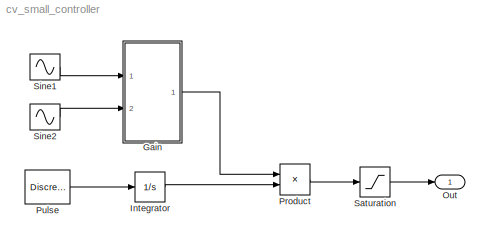
MODEL cv_small_controller
KIND model
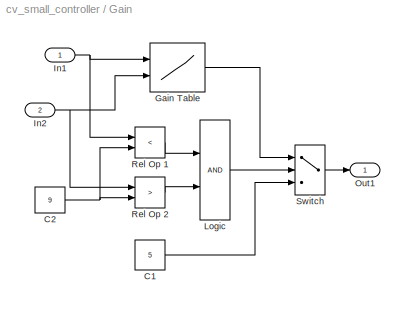
BLOCK [SubSystem] Gain
  MinAlgLoopOccurrences = off
  Ports = [2, 1]
  PropExecContextAcrossSSBoundary = on
  RTWSystemCode = Auto
  TreatAsAtomicUnit = off
BLOCK [Constant] Gain/C1
  Value = 5
BLOCK [Constant] Gain/C2
  Value = 9
BLOCK [Lookup2D] Gain/Gain Table
  ColumnIndex = [1:10]
  DialogController = Simulink.DDGSource
  InputSameDT = off
  OutputValues = sqrt([1:10]'*[1:10])
  RowIndex = [1:10]
  SaturateOnIntegerOverflow = off
BLOCK [Inport] Gain/In1
  IconDisplay = Port number
  LatchInput = off
  Port = 1
BLOCK [Inport] Gain/In2
  IconDisplay = Port number
  LatchInput = off
  Port = 2
BLOCK [Logic] Gain/Logic
  AllPortsSameDT = off
  OutDataTypeMode = Boolean
  Ports = [2, 1]
BLOCK [Outport] Gain/Out1
  IconDisplay = Port number
BLOCK [RelationalOperator] Gain/Rel Op 1
  InputSameDT = off
  LogicOutDataTypeMode = Boolean
  Operator = <
BLOCK [RelationalOperator] Gain/Rel Op 2
  InputSameDT = off
  LogicOutDataTypeMode = Boolean
  Operator = >
BLOCK [Switch] Gain/Switch
  InputSameDT = off
  SaturateOnIntegerOverflow = off
  Threshold = 1
BLOCK [Integrator] Integrator
  Ports = [1, 1]
BLOCK [Outport] Out
  IconDisplay = Port number
BLOCK [Product] Product
  InputSameDT = off
  OutDataTypeMode = Inherit via internal rule
  Ports = [2, 1]
  SaturateOnIntegerOverflow = off
BLOCK [DiscretePulseGenerator] Pulse
  Ports = [0, 1]
  PulseType = Time based
  PulseWidth = 50
BLOCK [Saturate] Saturation
BLOCK [Sin] Sine1
  Amplitude = 3
  Bias = 5.5
  Ports = [0, 1]
  SampleTime = 0
  SineType = Time based
BLOCK [Sin] Sine2
  Amplitude = 3
  Bias = 5.5
  Phase = pi/2
  Ports = [0, 1]
  SampleTime = 0
  SineType = Time based
LINE Gain/C1:1 -> Gain/Switch:3
NET Gain/C2:1 -> Gain/Rel Op 1:2, Gain/Rel Op 2:2
LINE Gain/Gain Table:1 -> Gain/Switch:1
NET Gain/In1:1 -> Gain/Gain Table:1, Gain/Rel Op 1:1
NET Gain/In2:1 -> Gain/Gain Table:2, Gain/Rel Op 2:1
LINE Gain/Logic:1 -> Gain/Switch:2
LINE Gain/Rel Op 1:1 -> Gain/Logic:1
LINE Gain/Rel Op 2:1 -> Gain/Logic:2
LINE Gain/Switch:1 -> Gain/Out1:1
LINE Gain:1 -> Product:1
LINE Integrator:1 -> Product:2
LINE Product:1 -> Saturation:1
LINE Pulse:1 -> Integrator:1
LINE Saturation:1 -> Out:1
LINE Sine1:1 -> Gain:1
LINE Sine2:1 -> Gain:2
note: NET lines group one-source signal fan-out (src -> all destinations, sorted); 1:1 wires keep LINE
